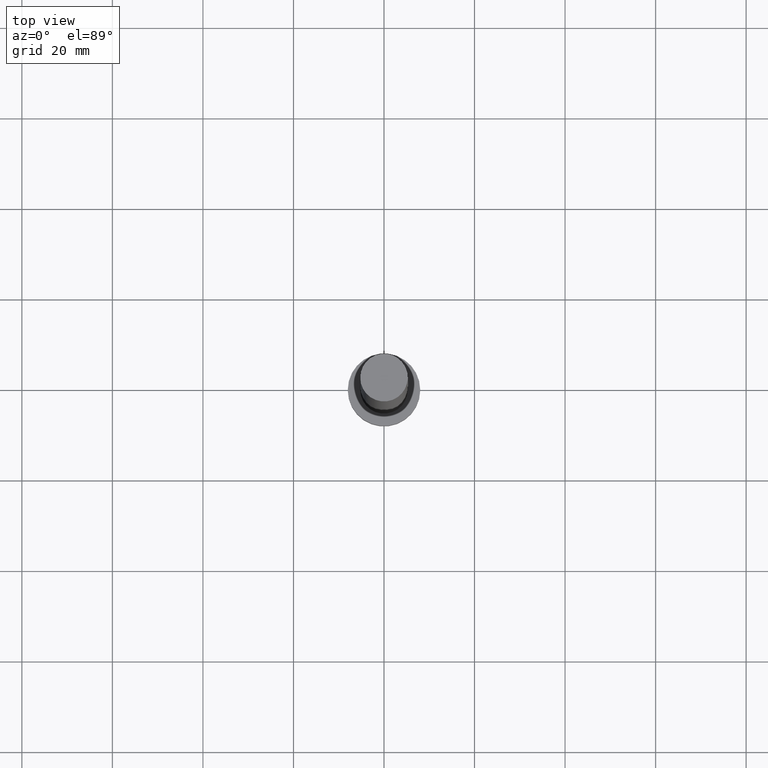
[diagram: clean part render]
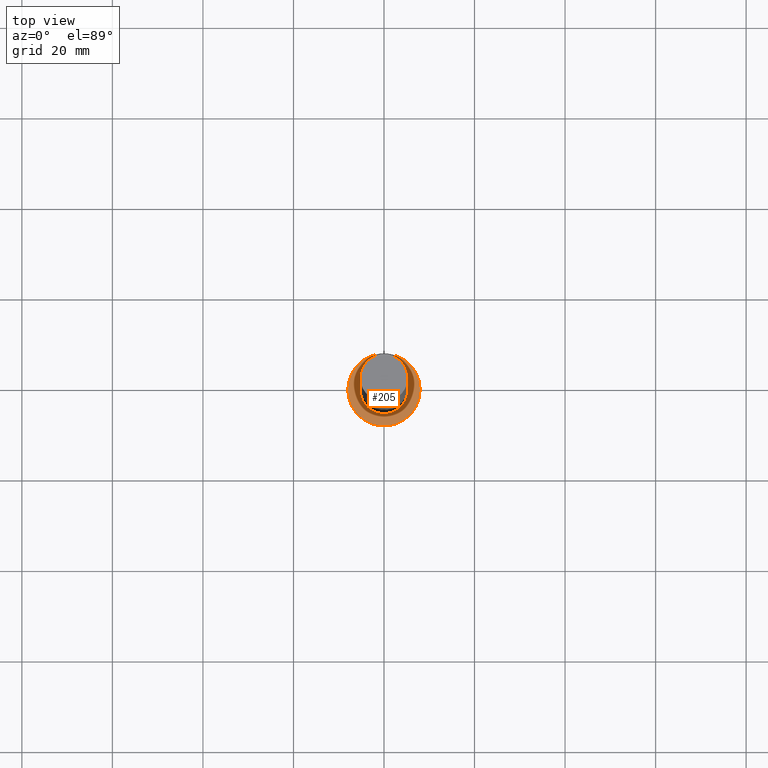
[diagram: same view with one face highlighted and labeled with its STEP entity id]
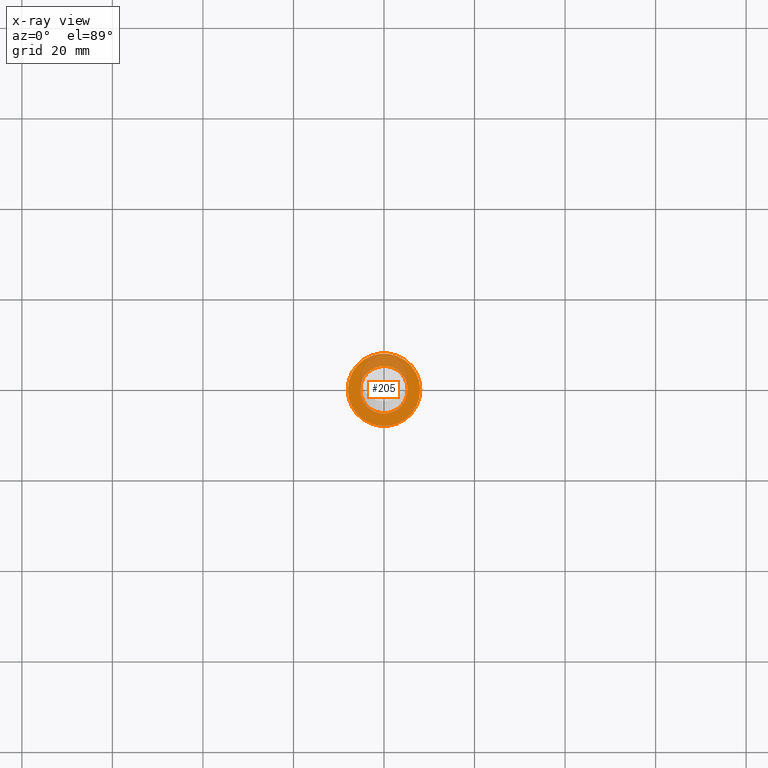
[diagram: x-ray of the same camera — body ghosted, the highlighted face saturated]
A machine part, top view. The second image highlights one B-rep face of the part: STEP entity #205.
The next image is the same camera in x-ray: the body ghosted, the highlighted face saturated — about 25% of this face is hidden behind the body in this view.
In plain terms, the highlighted planar face has unit normal (0, 0, 1).
Its self-contained STEP definition (entity closure, byte-faithful):
#3 = EDGE_CURVE ( 'NONE', #242, #116, #157, .T. ) ;
#6 = DIRECTION ( 'NONE',  ( 1.000000000000000000, 0.000000000000000000, 0.000000000000000000 ) ) ;
#12 = VERTEX_POINT ( 'NONE', #17 ) ;
#14 = AXIS2_PLACEMENT_3D ( 'NONE', #227, #66, #53 ) ;
#17 = CARTESIAN_POINT ( 'NONE',  ( 5.250000000000000888, 6.429395695523605139E-16, 6.500000000000000000 ) ) ;
#20 = EDGE_CURVE ( 'NONE', #12, #144, #109, .T. ) ;
#23 = CARTESIAN_POINT ( 'NONE',  ( 8.000000000000000000, 9.797174393178823685E-16, 6.500000000000000000 ) ) ;
#33 = CARTESIAN_POINT ( 'NONE',  ( 0.000000000000000000, 0.000000000000000000, 6.500000000000000000 ) ) ;
#40 = CARTESIAN_POINT ( 'NONE',  ( 0.000000000000000000, 0.000000000000000000, 6.500000000000000000 ) ) ;
#43 = CARTESIAN_POINT ( 'NONE',  ( -5.250000000000000888, 0.000000000000000000, 6.500000000000000000 ) ) ;
#45 = DIRECTION ( 'NONE',  ( 0.000000000000000000, 0.000000000000000000, 1.000000000000000000 ) ) ;
#50 = AXIS2_PLACEMENT_3D ( 'NONE', #80, #136, #6 ) ;
#53 = DIRECTION ( 'NONE',  ( 1.000000000000000000, 0.000000000000000000, -0.000000000000000000 ) ) ;
#55 = CARTESIAN_POINT ( 'NONE',  ( -8.000000000000000000, 0.000000000000000000, 6.500000000000000000 ) ) ;
#66 = DIRECTION ( 'NONE',  ( 0.000000000000000000, 0.000000000000000000, 1.000000000000000000 ) ) ;
#69 = AXIS2_PLACEMENT_3D ( 'NONE', #33, #111, #190 ) ;
#80 = CARTESIAN_POINT ( 'NONE',  ( 0.000000000000000000, 0.000000000000000000, 6.500000000000000000 ) ) ;
#98 = ORIENTED_EDGE ( 'NONE', *, *, #110, .T. ) ;
#102 = CIRCLE ( 'NONE', #245, 8.000000000000000000 ) ;
#107 = CIRCLE ( 'NONE', #194, 5.250000000000000888 ) ;
#109 = CIRCLE ( 'NONE', #50, 5.250000000000000888 ) ;
#110 = EDGE_CURVE ( 'NONE', #116, #242, #102, .T. ) ;
#111 = DIRECTION ( 'NONE',  ( 0.000000000000000000, 0.000000000000000000, 1.000000000000000000 ) ) ;
#116 = VERTEX_POINT ( 'NONE', #23 ) ;
#127 = DIRECTION ( 'NONE',  ( 1.000000000000000000, 0.000000000000000000, 0.000000000000000000 ) ) ;
#130 = CARTESIAN_POINT ( 'NONE',  ( 0.000000000000000000, 0.000000000000000000, 6.500000000000000000 ) ) ;
#133 = EDGE_LOOP ( 'NONE', ( #150, #209 ) ) ;
#136 = DIRECTION ( 'NONE',  ( 0.000000000000000000, 0.000000000000000000, 1.000000000000000000 ) ) ;
#144 = VERTEX_POINT ( 'NONE', #43 ) ;
#147 = PLANE ( 'NONE',  #14 ) ;
#150 = ORIENTED_EDGE ( 'NONE', *, *, #211, .F. ) ;
#154 = DIRECTION ( 'NONE',  ( 0.000000000000000000, 0.000000000000000000, 1.000000000000000000 ) ) ;
#157 = CIRCLE ( 'NONE', #69, 8.000000000000000000 ) ;
#163 = FACE_OUTER_BOUND ( 'NONE', #164, .T. ) ;
#164 = EDGE_LOOP ( 'NONE', ( #204, #98 ) ) ;
#190 = DIRECTION ( 'NONE',  ( 1.000000000000000000, 0.000000000000000000, 0.000000000000000000 ) ) ;
#194 = AXIS2_PLACEMENT_3D ( 'NONE', #130, #45, #127 ) ;
#204 = ORIENTED_EDGE ( 'NONE', *, *, #3, .T. ) ;
#205 = ADVANCED_FACE ( 'NONE', ( #218, #163 ), #147, .T. ) ;
#209 = ORIENTED_EDGE ( 'NONE', *, *, #20, .F. ) ;
#211 = EDGE_CURVE ( 'NONE', #144, #12, #107, .T. ) ;
#217 = DIRECTION ( 'NONE',  ( 1.000000000000000000, 0.000000000000000000, 0.000000000000000000 ) ) ;
#218 = FACE_BOUND ( 'NONE', #133, .T. ) ;
#227 = CARTESIAN_POINT ( 'NONE',  ( 0.000000000000000000, 0.000000000000000000, 6.500000000000000000 ) ) ;
#242 = VERTEX_POINT ( 'NONE', #55 ) ;
#245 = AXIS2_PLACEMENT_3D ( 'NONE', #40, #154, #217 ) ;